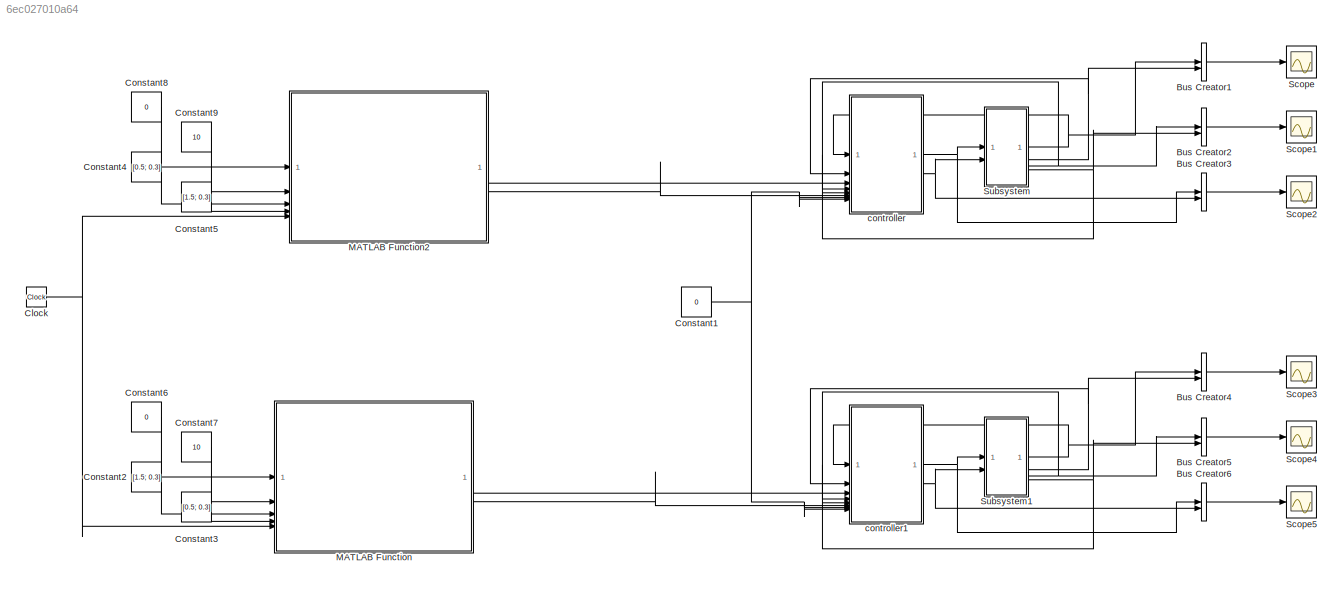
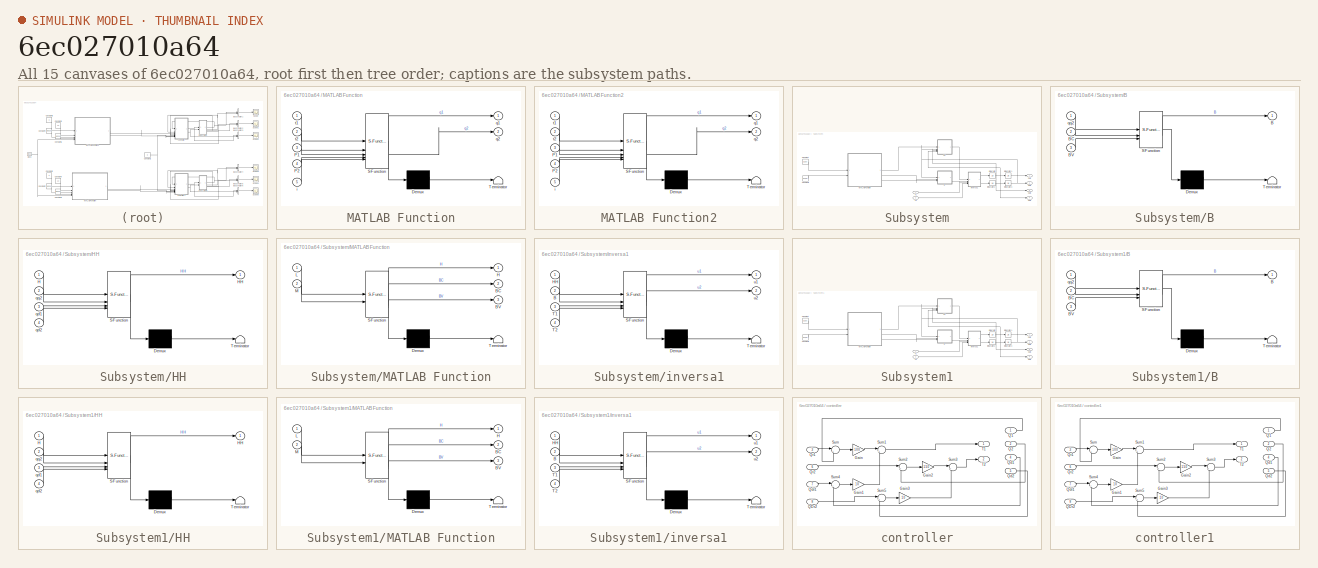
[diagram: thumbnail index - all 15 canvases of the model, root first then tree order]
MODEL slx_6ec027010a64
KIND model
CONFIG AbsTol = auto
CONFIG EnableMultiTasking = off
CONFIG FixedStep = auto
CONFIG MaxStep = auto
CONFIG MinStep = auto
CONFIG RelTol = 1e-3
CONFIG SampleTimeConstraint = Unconstrained
CONFIG SolverName = VariableStepAuto
CONFIG StartTime = 0.0
CONFIG StopTime = 10
BLOCK [BusCreator] Bus Creator1
  DisplayOption = bar
  InheritFromInputs = on
  Inputs = 2
BLOCK [BusCreator] Bus Creator2
  DisplayOption = bar
  InheritFromInputs = on
  Inputs = 2
BLOCK [BusCreator] Bus Creator3
  DisplayOption = bar
  InheritFromInputs = on
  Inputs = 2
BLOCK [BusCreator] Bus Creator4
  DisplayOption = bar
  InheritFromInputs = on
  Inputs = 2
BLOCK [BusCreator] Bus Creator5
  DisplayOption = bar
  InheritFromInputs = on
  Inputs = 2
BLOCK [BusCreator] Bus Creator6
  DisplayOption = bar
  InheritFromInputs = on
  Inputs = 2
BLOCK [Clock] Clock
  Decimation = 1000
BLOCK [Constant] Constant1
  Value = 0
BLOCK [Constant] Constant2
  Value = [1.5; 0.3]
BLOCK [Constant] Constant3
  Value = [0.5; 0.3]
BLOCK [Constant] Constant4
  Value = [0.5; 0.3]
BLOCK [Constant] Constant5
  Value = [1.5; 0.3]
BLOCK [Constant] Constant6
  Value = 0
BLOCK [Constant] Constant7
  Value = 10
BLOCK [Constant] Constant8
  Value = 0
BLOCK [Constant] Constant9
  Value = 10
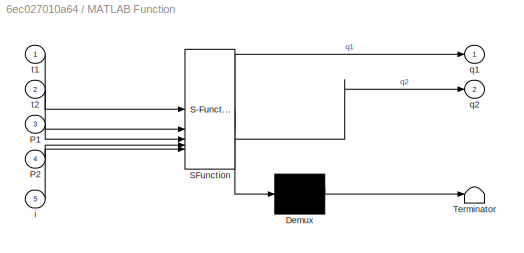
BLOCK [SubSystem] MATLAB Function
  ErrorFcn = Stateflow.Translate.translate
  LibrarySourceBlock = simulink/User-Defined\nFunctions/MATLAB Function
  PermitHierarchicalResolution = ExplicitOnly
  SFBlockType = MATLAB Function
  TreatAsAtomicUnit = on
BLOCK [Demux] MATLAB Function/ Demux 
  Outputs = 1
BLOCK [S-Function] MATLAB Function/ SFunction 
  EnableBusSupport = on
  FunctionName = sf_sfun
  PortCounts = [5 3]
  SFcnIsStateOwnerBlock = off
  SFunctionDeploymentMode = off
  Tag = Stateflow S-Function 4
BLOCK [Terminator] MATLAB Function/ Terminator 
BLOCK [Inport] MATLAB Function/P1
  Port = 3
BLOCK [Inport] MATLAB Function/P2
  Port = 4
BLOCK [Inport] MATLAB Function/i
  Port = 5
BLOCK [Outport] MATLAB Function/q1
BLOCK [Outport] MATLAB Function/q2
  Port = 2
BLOCK [Inport] MATLAB Function/t1
BLOCK [Inport] MATLAB Function/t2
  Port = 2
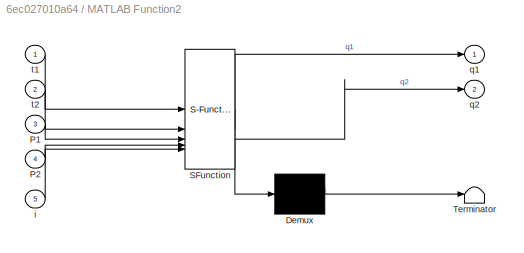
BLOCK [SubSystem] MATLAB Function2
  ErrorFcn = Stateflow.Translate.translate
  LibrarySourceBlock = simulink/User-Defined\nFunctions/MATLAB Function
  PermitHierarchicalResolution = ExplicitOnly
  SFBlockType = MATLAB Function
  TreatAsAtomicUnit = on
BLOCK [Demux] MATLAB Function2/ Demux 
  Outputs = 1
BLOCK [S-Function] MATLAB Function2/ SFunction 
  EnableBusSupport = on
  FunctionName = sf_sfun
  PortCounts = [5 3]
  SFcnIsStateOwnerBlock = off
  SFunctionDeploymentMode = off
  Tag = Stateflow S-Function 7
BLOCK [Terminator] MATLAB Function2/ Terminator 
BLOCK [Inport] MATLAB Function2/P1
  Port = 3
BLOCK [Inport] MATLAB Function2/P2
  Port = 4
BLOCK [Inport] MATLAB Function2/i
  Port = 5
BLOCK [Outport] MATLAB Function2/q1
BLOCK [Outport] MATLAB Function2/q2
  Port = 2
BLOCK [Inport] MATLAB Function2/t1
BLOCK [Inport] MATLAB Function2/t2
  Port = 2
BLOCK [Scope] Scope
  Floating = off
  NumInputPorts = 1
  ScopeSpecificationString = Simulink.scopes.TimeScopeBlockCfg('CurrentConfiguration', extmgr.ConfigurationSet(extmgr.Configuration('Core','General UI',true),extmgr.Configuration('Core','Source UI',true),extmgr.Configuration('Sources','WiredSimulink',true,'DataLoggingVariableName','ScopeData1'),extmgr.Configuration('Visuals','Time Domain',true,'SerializedDisplays',{struct('MinYLimReal','-2.26613','MaxYLimReal','3.1392','YLabe...<+1409ch>
BLOCK [Scope] Scope1
  Floating = off
  NumInputPorts = 1
  ScopeSpecificationString = Simulink.scopes.TimeScopeBlockCfg('CurrentConfiguration', extmgr.ConfigurationSet(extmgr.Configuration('Core','General UI',true),extmgr.Configuration('Core','Source UI',true),extmgr.Configuration('Sources','WiredSimulink',true,'DataLoggingVariableName','ScopeData2'),extmgr.Configuration('Visuals','Time Domain',true,'SerializedDisplays',{struct('MinYLimReal','-2.5075','MaxYLimReal','8.24783','YLabe...<+1410ch>
BLOCK [Scope] Scope2
  Floating = off
  NumInputPorts = 1
  ScopeSpecificationString = Simulink.scopes.TimeScopeBlockCfg('CurrentConfiguration', extmgr.ConfigurationSet(extmgr.Configuration('Core','General UI',true),extmgr.Configuration('Core','Source UI',true),extmgr.Configuration('Sources','WiredSimulink',true),extmgr.Configuration('Visuals','Time Domain',true,'SerializedDisplays',{struct('MinYLimReal','-57.07599','MaxYLimReal','155.12296','YLabelReal','','MinYLimMag','0.00000','M...<+1385ch>
BLOCK [Scope] Scope3
  Floating = off
  NumInputPorts = 1
  ScopeSpecificationString = Simulink.scopes.TimeScopeBlockCfg('CurrentConfiguration', extmgr.ConfigurationSet(extmgr.Configuration('Core','General UI',true),extmgr.Configuration('Core','Source UI',true),extmgr.Configuration('Sources','WiredSimulink',true,'DataLoggingVariableName','ScopeData3'),extmgr.Configuration('Visuals','Time Domain',true,'SerializedDisplays',{struct('MinYLimReal','-2.26407','MaxYLimReal','3.0507','YLabe...<+1410ch>
BLOCK [Scope] Scope4
  Floating = off
  NumInputPorts = 1
  ScopeSpecificationString = Simulink.scopes.TimeScopeBlockCfg('CurrentConfiguration', extmgr.ConfigurationSet(extmgr.Configuration('Core','General UI',true),extmgr.Configuration('Core','Source UI',true),extmgr.Configuration('Sources','WiredSimulink',true,'DataLoggingVariableName','ScopeData4'),extmgr.Configuration('Visuals','Time Domain',true,'SerializedDisplays',{struct('MinYLimReal','-16.59438','MaxYLimReal','8.84546','YLa...<+1419ch>
BLOCK [Scope] Scope5
  Floating = off
  NumInputPorts = 1
  ScopeSpecificationString = Simulink.scopes.TimeScopeBlockCfg('CurrentConfiguration', extmgr.ConfigurationSet(extmgr.Configuration('Core','General UI',true),extmgr.Configuration('Core','Source UI',true),extmgr.Configuration('Sources','WiredSimulink',true,'DataLoggingVariableName','ScopeData5'),extmgr.Configuration('Visuals','Time Domain',true,'SerializedDisplays',{struct('MinYLimReal','-255.2322','MaxYLimReal','195.25942','Y...<+1427ch>
BLOCK [SubSystem] Subsystem
BLOCK [SubSystem] Subsystem/B
  ErrorFcn = Stateflow.Translate.translate
  PermitHierarchicalResolution = ExplicitOnly
  SFBlockType = MATLAB Function
  TreatAsAtomicUnit = on
BLOCK [Demux] Subsystem/B/ Demux 
  Outputs = 1
BLOCK [S-Function] Subsystem/B/ SFunction 
  EnableBusSupport = on
  FunctionName = sf_sfun
  PortCounts = [3 2]
  SFcnIsStateOwnerBlock = off
  SFunctionDeploymentMode = off
  Tag = Stateflow S-Function 3
BLOCK [Terminator] Subsystem/B/ Terminator 
BLOCK [Outport] Subsystem/B/B
BLOCK [Inport] Subsystem/B/BC
  Port = 2
BLOCK [Inport] Subsystem/B/BV
  Port = 3
BLOCK [Inport] Subsystem/B/qq2
BLOCK [Constant] Subsystem/Constant
  Value = [1; 0.8]
BLOCK [Constant] Subsystem/Constant1
  Value = [1.2; 0.8]
BLOCK [SubSystem] Subsystem/HH
  ErrorFcn = Stateflow.Translate.translate
  PermitHierarchicalResolution = ExplicitOnly
  SFBlockType = MATLAB Function
  TreatAsAtomicUnit = on
BLOCK [Demux] Subsystem/HH/ Demux 
  Outputs = 1
BLOCK [S-Function] Subsystem/HH/ SFunction 
  EnableBusSupport = on
  FunctionName = sf_sfun
  PortCounts = [4 2]
  SFcnIsStateOwnerBlock = off
  SFunctionDeploymentMode = off
  Tag = Stateflow S-Function 2
BLOCK [Terminator] Subsystem/HH/ Terminator 
BLOCK [Inport] Subsystem/HH/H
BLOCK [Outport] Subsystem/HH/HH
BLOCK [Inport] Subsystem/HH/qd1
  Port = 3
BLOCK [Inport] Subsystem/HH/qd2
  Port = 4
BLOCK [Inport] Subsystem/HH/qq2
  Port = 2
BLOCK [Integrator] Subsystem/Integrator
BLOCK [Integrator] Subsystem/Integrator1
  InitialCondition = -1.7256
BLOCK [Integrator] Subsystem/Integrator2
BLOCK [Integrator] Subsystem/Integrator3
  InitialCondition = 2.5192
BLOCK [SubSystem] Subsystem/MATLAB Function
  ErrorFcn = Stateflow.Translate.translate
  LibrarySourceBlock = simulink/User-Defined\nFunctions/MATLAB Function
  PermitHierarchicalResolution = ExplicitOnly
  SFBlockType = MATLAB Function
  TreatAsAtomicUnit = on
BLOCK [Demux] Subsystem/MATLAB Function/ Demux 
  Outputs = 1
BLOCK [S-Function] Subsystem/MATLAB Function/ SFunction 
  EnableBusSupport = on
  FunctionName = sf_sfun
  PortCounts = [2 4]
  SFcnIsStateOwnerBlock = off
  SFunctionDeploymentMode = off
  Tag = Stateflow S-Function 5
BLOCK [Terminator] Subsystem/MATLAB Function/ Terminator 
BLOCK [Outport] Subsystem/MATLAB Function/BC
  Port = 2
BLOCK [Outport] Subsystem/MATLAB Function/BV
  Port = 3
BLOCK [Outport] Subsystem/MATLAB Function/H
BLOCK [Inport] Subsystem/MATLAB Function/L
BLOCK [Inport] Subsystem/MATLAB Function/M
  Port = 2
BLOCK [Outport] Subsystem/Out1
BLOCK [Outport] Subsystem/Out2
  Port = 2
BLOCK [Outport] Subsystem/Out3
  Port = 3
BLOCK [Outport] Subsystem/Out4
  Port = 4
BLOCK [Inport] Subsystem/T1
BLOCK [Inport] Subsystem/T2
  Port = 2
BLOCK [SubSystem] Subsystem/inversa1
  ErrorFcn = Stateflow.Translate.translate
  PermitHierarchicalResolution = ExplicitOnly
  SFBlockType = MATLAB Function
  TreatAsAtomicUnit = on
BLOCK [Demux] Subsystem/inversa1/ Demux 
  Outputs = 1
BLOCK [S-Function] Subsystem/inversa1/ SFunction 
  EnableBusSupport = on
  FunctionName = sf_sfun
  PortCounts = [4 3]
  SFcnIsStateOwnerBlock = off
  SFunctionDeploymentMode = off
  Tag = Stateflow S-Function 1
BLOCK [Terminator] Subsystem/inversa1/ Terminator 
BLOCK [Inport] Subsystem/inversa1/B
  Port = 2
BLOCK [Inport] Subsystem/inversa1/HH
BLOCK [Inport] Subsystem/inversa1/T1
  Port = 3
BLOCK [Inport] Subsystem/inversa1/T2
  Port = 4
BLOCK [Outport] Subsystem/inversa1/u1
BLOCK [Outport] Subsystem/inversa1/u2
  Port = 2
BLOCK [SubSystem] Subsystem1
BLOCK [SubSystem] Subsystem1/B
  ErrorFcn = Stateflow.Translate.translate
  PermitHierarchicalResolution = ExplicitOnly
  SFBlockType = MATLAB Function
  TreatAsAtomicUnit = on
BLOCK [Demux] Subsystem1/B/ Demux 
  Outputs = 1
BLOCK [S-Function] Subsystem1/B/ SFunction 
  EnableBusSupport = on
  FunctionName = sf_sfun
  PortCounts = [3 2]
  SFcnIsStateOwnerBlock = off
  SFunctionDeploymentMode = off
  Tag = Stateflow S-Function 9
BLOCK [Terminator] Subsystem1/B/ Terminator 
BLOCK [Outport] Subsystem1/B/B
BLOCK [Inport] Subsystem1/B/BC
  Port = 2
BLOCK [Inport] Subsystem1/B/BV
  Port = 3
BLOCK [Inport] Subsystem1/B/qq2
BLOCK [Constant] Subsystem1/Constant
  Value = [1; 0.8]
BLOCK [Constant] Subsystem1/Constant1
  Value = [1.2; 0.8]
BLOCK [SubSystem] Subsystem1/HH
  ErrorFcn = Stateflow.Translate.translate
  PermitHierarchicalResolution = ExplicitOnly
  SFBlockType = MATLAB Function
  TreatAsAtomicUnit = on
BLOCK [Demux] Subsystem1/HH/ Demux 
  Outputs = 1
BLOCK [S-Function] Subsystem1/HH/ SFunction 
  EnableBusSupport = on
  FunctionName = sf_sfun
  PortCounts = [4 2]
  SFcnIsStateOwnerBlock = off
  SFunctionDeploymentMode = off
  Tag = Stateflow S-Function 10
BLOCK [Terminator] Subsystem1/HH/ Terminator 
BLOCK [Inport] Subsystem1/HH/H
BLOCK [Outport] Subsystem1/HH/HH
BLOCK [Inport] Subsystem1/HH/qd1
  Port = 3
BLOCK [Inport] Subsystem1/HH/qd2
  Port = 4
BLOCK [Inport] Subsystem1/HH/qq2
  Port = 2
BLOCK [Integrator] Subsystem1/Integrator
BLOCK [Integrator] Subsystem1/Integrator1
  InitialCondition = -1.7256
BLOCK [Integrator] Subsystem1/Integrator2
BLOCK [Integrator] Subsystem1/Integrator3
  InitialCondition = 2.5192
BLOCK [SubSystem] Subsystem1/MATLAB Function
  ErrorFcn = Stateflow.Translate.translate
  LibrarySourceBlock = simulink/User-Defined\nFunctions/MATLAB Function
  PermitHierarchicalResolution = ExplicitOnly
  SFBlockType = MATLAB Function
  TreatAsAtomicUnit = on
BLOCK [Demux] Subsystem1/MATLAB Function/ Demux 
  Outputs = 1
BLOCK [S-Function] Subsystem1/MATLAB Function/ SFunction 
  EnableBusSupport = on
  FunctionName = sf_sfun
  PortCounts = [2 4]
  SFcnIsStateOwnerBlock = off
  SFunctionDeploymentMode = off
  Tag = Stateflow S-Function 11
BLOCK [Terminator] Subsystem1/MATLAB Function/ Terminator 
BLOCK [Outport] Subsystem1/MATLAB Function/BC
  Port = 2
BLOCK [Outport] Subsystem1/MATLAB Function/BV
  Port = 3
BLOCK [Outport] Subsystem1/MATLAB Function/H
BLOCK [Inport] Subsystem1/MATLAB Function/L
BLOCK [Inport] Subsystem1/MATLAB Function/M
  Port = 2
BLOCK [Outport] Subsystem1/Out1
BLOCK [Outport] Subsystem1/Out2
  Port = 2
BLOCK [Outport] Subsystem1/Out3
  Port = 3
BLOCK [Outport] Subsystem1/Out4
  Port = 4
BLOCK [Inport] Subsystem1/T1
BLOCK [Inport] Subsystem1/T2
  Port = 2
BLOCK [SubSystem] Subsystem1/inversa1
  ErrorFcn = Stateflow.Translate.translate
  PermitHierarchicalResolution = ExplicitOnly
  SFBlockType = MATLAB Function
  TreatAsAtomicUnit = on
BLOCK [Demux] Subsystem1/inversa1/ Demux 
  Outputs = 1
BLOCK [S-Function] Subsystem1/inversa1/ SFunction 
  EnableBusSupport = on
  FunctionName = sf_sfun
  PortCounts = [4 3]
  SFcnIsStateOwnerBlock = off
  SFunctionDeploymentMode = off
  Tag = Stateflow S-Function 12
BLOCK [Terminator] Subsystem1/inversa1/ Terminator 
BLOCK [Inport] Subsystem1/inversa1/B
  Port = 2
BLOCK [Inport] Subsystem1/inversa1/HH
BLOCK [Inport] Subsystem1/inversa1/T1
  Port = 3
BLOCK [Inport] Subsystem1/inversa1/T2
  Port = 4
BLOCK [Outport] Subsystem1/inversa1/u1
BLOCK [Outport] Subsystem1/inversa1/u2
  Port = 2
BLOCK [SubSystem] controller
BLOCK [Gain] controller/Gain
  Gain = 100
BLOCK [Gain] controller/Gain1
  Gain = 10
BLOCK [Gain] controller/Gain2
  Gain = 150
BLOCK [Gain] controller/Gain3
  Gain = 10
BLOCK [Inport] controller/Q1
BLOCK [Inport] controller/Q2
  Port = 2
BLOCK [Inport] controller/QDr2
  Port = 8
BLOCK [Inport] controller/Qd1
  Port = 4
BLOCK [Inport] controller/Qd2
  Port = 5
BLOCK [Inport] controller/Qdr1
  Port = 7
BLOCK [Inport] controller/Qr1
  Port = 3
BLOCK [Inport] controller/Qr2
  Port = 6
BLOCK [Sum] controller/Sum
  Inputs = |+-
BLOCK [Sum] controller/Sum1
  Inputs = |++
BLOCK [Sum] controller/Sum2
  Inputs = |+-
BLOCK [Sum] controller/Sum3
  Inputs = |++
BLOCK [Sum] controller/Sum4
  Inputs = |+-
BLOCK [Sum] controller/Sum5
  Inputs = |+-
BLOCK [Outport] controller/T1
BLOCK [Outport] controller/T2
  Port = 2
BLOCK [SubSystem] controller1
BLOCK [Gain] controller1/Gain
  Gain = 100
BLOCK [Gain] controller1/Gain1
  Gain = 10
BLOCK [Gain] controller1/Gain2
  Gain = 150
BLOCK [Gain] controller1/Gain3
  Gain = 10
BLOCK [Inport] controller1/Q1
BLOCK [Inport] controller1/Q2
  Port = 2
BLOCK [Inport] controller1/QDr2
  Port = 8
BLOCK [Inport] controller1/Qd1
  Port = 4
BLOCK [Inport] controller1/Qd2
  Port = 5
BLOCK [Inport] controller1/Qdr1
  Port = 7
BLOCK [Inport] controller1/Qr1
  Port = 3
BLOCK [Inport] controller1/Qr2
  Port = 6
BLOCK [Sum] controller1/Sum
  Inputs = |+-
BLOCK [Sum] controller1/Sum1
  Inputs = |++
BLOCK [Sum] controller1/Sum2
  Inputs = |+-
BLOCK [Sum] controller1/Sum3
  Inputs = |++
BLOCK [Sum] controller1/Sum4
  Inputs = |+-
BLOCK [Sum] controller1/Sum5
  Inputs = |+-
BLOCK [Outport] controller1/T1
BLOCK [Outport] controller1/T2
  Port = 2
LINE Bus Creator1:1 -> Scope:1
LINE Bus Creator2:1 -> Scope1:1
LINE Bus Creator3:1 -> Scope2:1
LINE Bus Creator4:1 -> Scope3:1
LINE Bus Creator5:1 -> Scope4:1
LINE Bus Creator6:1 -> Scope5:1
NET Clock:1 -> MATLAB Function2:5, MATLAB Function:5
NET Constant1:1 -> controller1:7, controller1:8, controller:7, controller:8
LINE Constant2:1 -> MATLAB Function:3
LINE Constant3:1 -> MATLAB Function:4
LINE Constant4:1 -> MATLAB Function2:3
LINE Constant5:1 -> MATLAB Function2:4
LINE Constant6:1 -> MATLAB Function:1
LINE Constant7:1 -> MATLAB Function:2
LINE Constant8:1 -> MATLAB Function2:1
LINE Constant9:1 -> MATLAB Function2:2
LINE MATLAB Function2:1 -> controller:3
LINE MATLAB Function2:2 -> controller:6
LINE MATLAB Function:1 -> controller1:3
LINE MATLAB Function:2 -> controller1:6
LINE Subsystem/B:1 -> Subsystem/inversa1:2
LINE Subsystem/Constant1:1 -> Subsystem/MATLAB Function:2
LINE Subsystem/Constant:1 -> Subsystem/MATLAB Function:1
LINE Subsystem/HH:1 -> Subsystem/inversa1:1
LINE Subsystem/Integrator1:1 -> Subsystem/Out1:1
NET Subsystem/Integrator2:1 -> Subsystem/HH:4, Subsystem/Integrator3:1, Subsystem/Out4:1
NET Subsystem/Integrator3:1 -> Subsystem/B:1, Subsystem/HH:2, Subsystem/Out2:1
NET Subsystem/Integrator:1 -> Subsystem/HH:3, Subsystem/Integrator1:1, Subsystem/Out3:1
LINE Subsystem/MATLAB Function:1 -> Subsystem/HH:1
LINE Subsystem/MATLAB Function:2 -> Subsystem/B:2
LINE Subsystem/MATLAB Function:3 -> Subsystem/B:3
LINE Subsystem/T1:1 -> Subsystem/inversa1:3
LINE Subsystem/T2:1 -> Subsystem/inversa1:4
LINE Subsystem/inversa1:1 -> Subsystem/Integrator:1
LINE Subsystem/inversa1:2 -> Subsystem/Integrator2:1
LINE Subsystem1/B:1 -> Subsystem1/inversa1:2
LINE Subsystem1/Constant1:1 -> Subsystem1/MATLAB Function:2
LINE Subsystem1/Constant:1 -> Subsystem1/MATLAB Function:1
LINE Subsystem1/HH:1 -> Subsystem1/inversa1:1
LINE Subsystem1/Integrator1:1 -> Subsystem1/Out1:1
NET Subsystem1/Integrator2:1 -> Subsystem1/HH:4, Subsystem1/Integrator3:1, Subsystem1/Out4:1
NET Subsystem1/Integrator3:1 -> Subsystem1/B:1, Subsystem1/HH:2, Subsystem1/Out2:1
NET Subsystem1/Integrator:1 -> Subsystem1/HH:3, Subsystem1/Integrator1:1, Subsystem1/Out3:1
LINE Subsystem1/MATLAB Function:1 -> Subsystem1/HH:1
LINE Subsystem1/MATLAB Function:2 -> Subsystem1/B:2
LINE Subsystem1/MATLAB Function:3 -> Subsystem1/B:3
LINE Subsystem1/T1:1 -> Subsystem1/inversa1:3
LINE Subsystem1/T2:1 -> Subsystem1/inversa1:4
LINE Subsystem1/inversa1:1 -> Subsystem1/Integrator:1
LINE Subsystem1/inversa1:2 -> Subsystem1/Integrator2:1
NET Subsystem1:1 -> Bus Creator4:1, controller1:1
NET Subsystem1:2 -> Bus Creator4:2, controller1:2
NET Subsystem1:3 -> Bus Creator5:1, controller1:4
NET Subsystem1:4 -> Bus Creator5:2, controller1:5
NET Subsystem:1 -> Bus Creator1:1, controller:1
NET Subsystem:2 -> Bus Creator1:2, controller:2
NET Subsystem:3 -> Bus Creator2:1, controller:4
NET Subsystem:4 -> Bus Creator2:2, controller:5
LINE controller/Gain1:1 -> controller/Sum1:2
LINE controller/Gain2:1 -> controller/Sum3:1
LINE controller/Gain3:1 -> controller/Sum3:2
LINE controller/Gain:1 -> controller/Sum1:1
LINE controller/Q1:1 -> controller/Sum:2
LINE controller/Q2:1 -> controller/Sum2:2
LINE controller/QDr2:1 -> controller/Sum5:1
LINE controller/Qd1:1 -> controller/Sum4:2
LINE controller/Qd2:1 -> controller/Sum5:2
LINE controller/Qdr1:1 -> controller/Sum4:1
LINE controller/Qr1:1 -> controller/Sum:1
LINE controller/Qr2:1 -> controller/Sum2:1
LINE controller/Sum1:1 -> controller/T1:1
LINE controller/Sum2:1 -> controller/Gain2:1
LINE controller/Sum3:1 -> controller/T2:1
LINE controller/Sum4:1 -> controller/Gain1:1
LINE controller/Sum5:1 -> controller/Gain3:1
LINE controller/Sum:1 -> controller/Gain:1
LINE controller1/Gain1:1 -> controller1/Sum1:2
LINE controller1/Gain2:1 -> controller1/Sum3:1
LINE controller1/Gain3:1 -> controller1/Sum3:2
LINE controller1/Gain:1 -> controller1/Sum1:1
LINE controller1/Q1:1 -> controller1/Sum:2
LINE controller1/Q2:1 -> controller1/Sum2:2
LINE controller1/QDr2:1 -> controller1/Sum5:1
LINE controller1/Qd1:1 -> controller1/Sum4:2
LINE controller1/Qd2:1 -> controller1/Sum5:2
LINE controller1/Qdr1:1 -> controller1/Sum4:1
LINE controller1/Qr1:1 -> controller1/Sum:1
LINE controller1/Qr2:1 -> controller1/Sum2:1
LINE controller1/Sum1:1 -> controller1/T1:1
LINE controller1/Sum2:1 -> controller1/Gain2:1
LINE controller1/Sum3:1 -> controller1/T2:1
LINE controller1/Sum4:1 -> controller1/Gain1:1
LINE controller1/Sum5:1 -> controller1/Gain3:1
LINE controller1/Sum:1 -> controller1/Gain:1
NET controller1:1 -> Bus Creator6:1, Subsystem1:1
NET controller1:2 -> Bus Creator6:2, Subsystem1:2
NET controller:1 -> Bus Creator3:1, Subsystem:1
NET controller:2 -> Bus Creator3:2, Subsystem:2
note: NET lines group one-source signal fan-out (src -> all destinations, sorted); 1:1 wires keep LINE
CHART Subsystem1/MATLAB Function states=1 transitions=1
  STATE_LABEL 'eML_blk_kernel()'
  STATE_LABEL 'SCRIPT:\nfunction [H, BC, BV] = dati(L, M)\na1=L(1);\na2=L(2);\nm1=M(1);\nm2=M(2);\n% assenza di gravità\n%g=0;\n\nl1=a1/2;\nl2=a2/2;\nI1=m1*a1^2/12;\nI2=m2*a2^2/12;\nbc11=I1+I2+m1*l1^2+m2*(a1^2+l2^2);\nbc12=I2+m2*l2^2;\nbc21=bc12;\nbc22=m2*l2^2+I2;\nBC=[bc11 bc12; bc21 bc22];\nbv11=2*a1*m2*l2;\nbv12=a1*m1*l2;\nbv21=bv12;\nbv22=0;\nBV=[bv11 bv12; bv21 bv22];\nH=-m2*a1*l2;\n\n'
CHART Subsystem1/inversa1 states=1 transitions=1
  STATE_LABEL 'eML_blk_kernel()'
  STATE_LABEL 'SCRIPT:\nfunction [u1,u2] = fcn(HH,B,T1,T2)\n\ny =inv(B)*([T1;T2]-HH);\nu1=y(1);\nu2=y(2);'
CHART Subsystem/inversa1 states=1 transitions=1
  STATE_LABEL 'eML_blk_kernel()'
  STATE_LABEL 'SCRIPT:\nfunction [u1,u2] = fcn(HH,B,T1,T2)\n\ny =inv(B)*([T1;T2]-HH);\nu1=y(1);\nu2=y(2);'
CHART Subsystem/HH states=1 transitions=1
  STATE_LABEL 'eML_blk_kernel()'
  STATE_LABEL 'SCRIPT:\nfunction HH = fcn(H,qq2,qd1,qd2)\nuu1=H*sin(qq2);\nHH =uu1*[(2*qd1*qd2+qd2^2); -qd1^2];\n'
CHART Subsystem/B states=1 transitions=1
  STATE_LABEL 'eML_blk_kernel()'
  STATE_LABEL 'SCRIPT:\nfunction B = fcn(qq2,BC,BV)\nB=BC+cos(qq2)*BV;\n'
CHART MATLAB Function states=1 transitions=1
  STATE_LABEL 'eML_blk_kernel()'
  STATE_LABEL 'SCRIPT:\nfunction [q1, q2] = leggeOrariaSemicirconferenza(t1, t2, P1, P2, i)\nL = [1.0; 0.8];\nQ1 = twolink_inverse(L, P1(1), P1(2));\nQ2 = twolink_inverse(L, P2(1), P2(2));\nlambda = calcolaLambda(calcolaSigma(t1, t2, i));\nq1 = Q1(1) + lambda * (Q2(1) - Q1(1));\nq2 = Q1(2) + lambda * (Q2(2) - Q1(2));\nend\n\nfunction Q = twolink_inverse(L, x, y)\nL1 = L(1);\nL2 = L(2);\nPx = x;\nPy = y;\nP = [Px; Py];\nc2 = (Px...<+466ch>'
CHART Subsystem/MATLAB Function states=1 transitions=1
  STATE_LABEL 'eML_blk_kernel()'
  STATE_LABEL 'SCRIPT:\nfunction [H, BC, BV] = dati(L, M)\na1=L(1);\na2=L(2);\nm1=M(1);\nm2=M(2);\n% assenza di gravità\n%g=0;\n\nl1=a1/2;\nl2=a2/2;\nI1=m1*a1^2/12;\nI2=m2*a2^2/12;\nbc11=I1+I2+m1*l1^2+m2*(a1^2+l2^2);\nbc12=I2+m2*l2^2;\nbc21=bc12;\nbc22=m2*l2^2+I2;\nBC=[bc11 bc12; bc21 bc22];\nbv11=2*a1*m2*l2;\nbv12=a1*m1*l2;\nbv21=bv12;\nbv22=0;\nBV=[bv11 bv12; bv21 bv22];\nH=-m2*a1*l2;\n\n'
CHART MATLAB Function2 states=1 transitions=1
  STATE_LABEL 'eML_blk_kernel()'
  STATE_LABEL 'SCRIPT:\nfunction [q1, q2] = leggeOrariaRetta(t1, t2, P1, P2, i)\nL = [1.0; 0.8];\nlambda = calcolaLambda(calcolaSigma(t1, t2, i));\npx = P1(1) + lambda*(P2(1) - P1(1));\npy = P1(2) + lambda*(P2(2) - P1(2));\nQ = twolink_inverse(L, px, py);\nq1 = Q(1);\nq2 = Q(2);\nend\n\nfunction Q = twolink_inverse(L, x, y)\nL1 = L(1);\nL2 = L(2);\nPx = x;\nPy = y;\nP = [Px; Py];\nc2 = (Px^2+Py^2-L1^2-L2^2)/(2*L1*L2);\ns2 = sqrt(...<+426ch>'
CHART Subsystem1/B states=1 transitions=1
  STATE_LABEL 'eML_blk_kernel()'
  STATE_LABEL 'SCRIPT:\nfunction B = fcn(qq2,BC,BV)\nB=BC+cos(qq2)*BV;\n'
CHART Subsystem1/HH states=1 transitions=1
  STATE_LABEL 'eML_blk_kernel()'
  STATE_LABEL 'SCRIPT:\nfunction HH = fcn(H,qq2,qd1,qd2)\nuu1=H*sin(qq2);\nHH =uu1*[(2*qd1*qd2+qd2^2); -qd1^2];\n'
CHART  states=0 transitions=0
CHART  states=0 transitions=0
CHART  states=0 transitions=0
CHART  states=0 transitions=0
CHART  states=0 transitions=0
CHART  states=0 transitions=0
CHART  states=0 transitions=0
CHART  states=0 transitions=0
CHART  states=0 transitions=0
CHART  states=0 transitions=0
